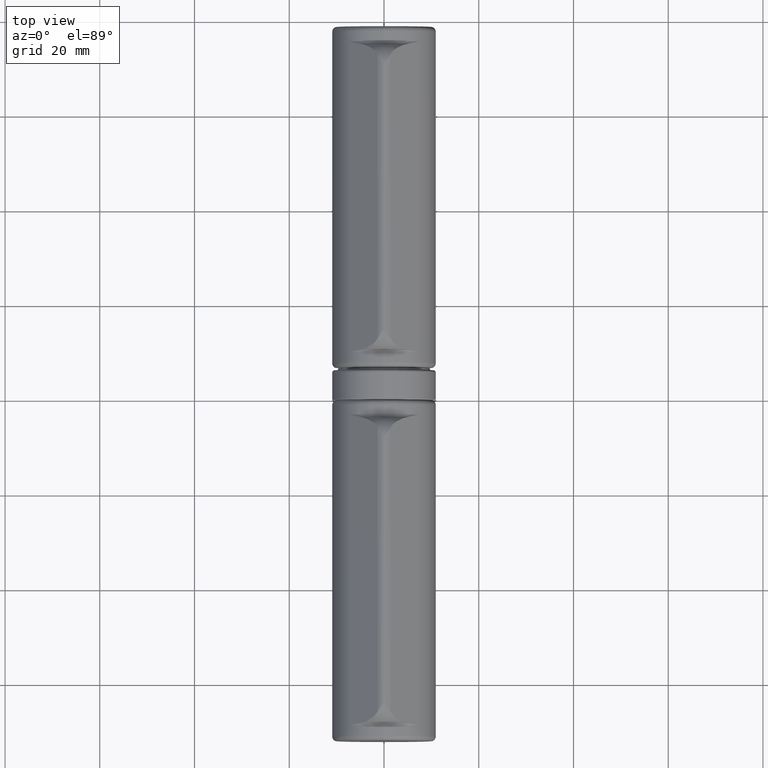
[diagram: clean part render]
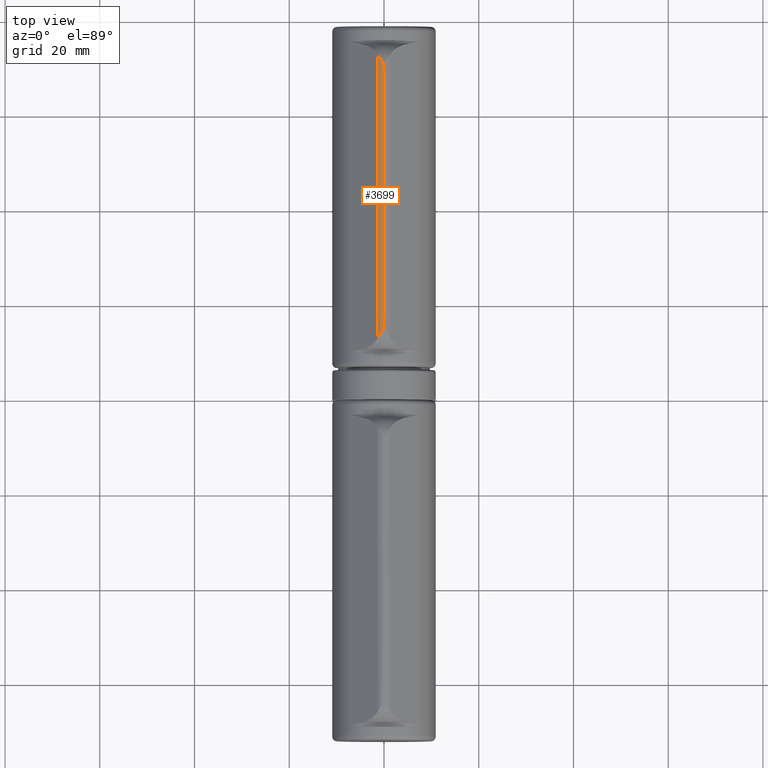
[diagram: same view with one face highlighted and labeled with its STEP entity id]
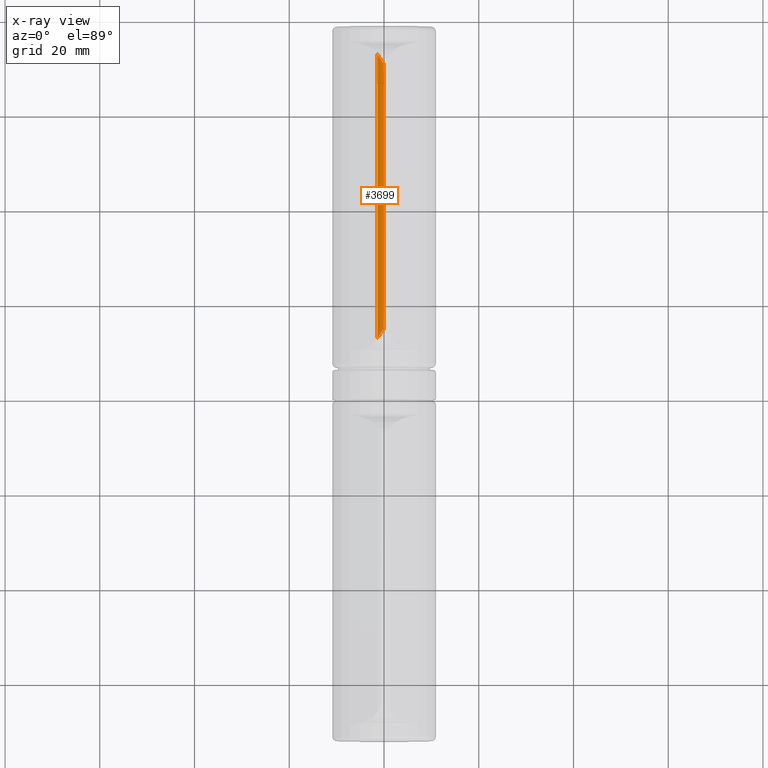
[diagram: x-ray of the same camera — body ghosted, the highlighted face saturated]
A machine part, top view. The second image highlights one B-rep face of the part: STEP entity #3699.
The next image is the same camera in x-ray: the body ghosted, the highlighted face saturated — about 0% of this face is hidden behind the body in this view.
In plain terms, the highlighted cylindrical surface (edge-blend (fillet) strip) has radius 2 mm, axis along (-0, -1, -0).
Its self-contained STEP definition (entity closure, byte-faithful):
#61 = EDGE_CURVE ( 'NONE', #2696, #1764, #1811, .T. ) ;
#73 = CARTESIAN_POINT ( 'NONE',  ( -0.1797755674963968375, -28.13744201227839525, 13.99422038142042268 ) ) ;
#185 = CARTESIAN_POINT ( 'NONE',  ( -0.9495471721019589362, -29.29085620622283415, 13.78933436052441408 ) ) ;
#340 = CARTESIAN_POINT ( 'NONE',  ( -0.04019047951948063330, 27.93071537509020885, 13.99994231150100177 ) ) ;
#382 = EDGE_CURVE ( 'NONE', #8740, #7435, #10509, .T. ) ;
#727 = VERTEX_POINT ( 'NONE', #3966 ) ;
#818 = ORIENTED_EDGE ( 'NONE', *, *, #6056, .T. ) ;
#1020 = CARTESIAN_POINT ( 'NONE',  ( -1.351001462184552304, -29.95793136767814602, 13.49723749695378672 ) ) ;
#1231 = EDGE_CURVE ( 'NONE', #7435, #6901, #1412, .T. ) ;
#1277 = CARTESIAN_POINT ( 'NONE',  ( -0.6152469644701304974, 28.78189699772699939, 13.91463114303778248 ) ) ;
#1313 = EDGE_CURVE ( 'NONE', #9233, #2094, #9024, .T. ) ;
#1412 = LINE ( 'NONE', #2133, #7505 ) ;
#1491 = ORIENTED_EDGE ( 'NONE', *, *, #4905, .T. ) ;
#1582 = ORIENTED_EDGE ( 'NONE', *, *, #1231, .T. ) ;
#1636 = AXIS2_PLACEMENT_3D ( 'NONE', #3669, #3713, #10595 ) ;
#1764 = VERTEX_POINT ( 'NONE', #4370 ) ;
#1811 = LINE ( 'NONE', #7497, #9412 ) ;
#1815 = CARTESIAN_POINT ( 'NONE',  ( -0.04019047951974855787, -26.00000000000000000, 13.99994231150100177 ) ) ;
#1968 = CARTESIAN_POINT ( 'NONE',  ( -0.09156454697678298449, 28.00747831101633167, 13.99894423454602155 ) ) ;
#2094 = VERTEX_POINT ( 'NONE', #9134 ) ;
#2133 = CARTESIAN_POINT ( 'NONE',  ( -0.04019047951974856481, -26.95871215252207875, 13.99994231150100354 ) ) ;
#2696 = VERTEX_POINT ( 'NONE', #8909 ) ;
#2716 = CARTESIAN_POINT ( 'NONE',  ( -0.06272908214057158760, -27.96405779639169609, 13.99965602459221969 ) ) ;
#2931 = CARTESIAN_POINT ( 'NONE',  ( -0.1501165675766360785, 28.09388185887190659, 13.99629779718924283 ) ) ;
#2986 = DIRECTION ( 'NONE',  ( -0.000000000000000000, 1.000000000000000000, -1.445602896647339410E-16 ) ) ;
#3257 = DIRECTION ( 'NONE',  ( 0.000000000000000000, 0.000000000000000000, -1.000000000000000000 ) ) ;
#3289 = LINE ( 'NONE', #7918, #4228 ) ;
#3669 = CARTESIAN_POINT ( 'NONE',  ( -0.02499999999999828748, -25.99999999999999645, 12.00000000000000355 ) ) ;
#3699 = ADVANCED_FACE ( 'NONE', ( #11090 ), #10290, .T. ) ;
#3713 = DIRECTION ( 'NONE',  ( 0.000000000000000000, 1.000000000000000000, -1.445602896647339410E-16 ) ) ;
#3740 = CARTESIAN_POINT ( 'NONE',  ( -1.160990710298337447, 29.62569070998569032, 13.66551710212297444 ) ) ;
#3814 = CARTESIAN_POINT ( 'NONE',  ( -0.1794816681737933517, 28.13700997572489726, 13.99424203055542826 ) ) ;
#3935 = CARTESIAN_POINT ( 'NONE',  ( -1.351001462184552304, -29.95793136767814602, 13.49723749695378672 ) ) ;
#3966 = CARTESIAN_POINT ( 'NONE',  ( -1.351001462184445279, 29.95793136767795772, 13.49723749695388086 ) ) ;
#4208 = EDGE_LOOP ( 'NONE', ( #1582, #6730, #10354, #1491, #10165, #6823, #818, #6396 ) ) ;
#4228 = VECTOR ( 'NONE', #7109, 1000.000000000000000 ) ;
#4286 = EDGE_CURVE ( 'NONE', #1764, #727, #7073, .T. ) ;
#4370 = CARTESIAN_POINT ( 'NONE',  ( -0.04019047951964108134, 27.91742430504415395, 13.99994231150100887 ) ) ;
#4380 = CARTESIAN_POINT ( 'NONE',  ( -1.160508044110430070, -29.62484675073533680, 13.66594456675182379 ) ) ;
#4452 = CARTESIAN_POINT ( 'NONE',  ( -0.09167234762554272998, -28.00763856088741832, 13.99894086666714621 ) ) ;
#4564 = CARTESIAN_POINT ( 'NONE',  ( -0.3258129472107139657, 28.35225974672063387, 13.97813046162228723 ) ) ;
#4612 = AXIS2_PLACEMENT_3D ( 'NONE', #8688, #10324, #7003 ) ;
#4781 = DIRECTION ( 'NONE',  ( -0.000000000000000000, 1.000000000000000000, 1.445602896647339410E-16 ) ) ;
#4905 = EDGE_CURVE ( 'NONE', #9233, #2696, #7194, .T. ) ;
#5084 = CARTESIAN_POINT ( 'NONE',  ( -0.04019047951928750306, -27.91742430504415395, 13.99994231150100710 ) ) ;
#5268 = CARTESIAN_POINT ( 'NONE',  ( -0.04019047938135923009, -27.93061954580347361, 13.99994231150222923 ) ) ;
#5567 = CARTESIAN_POINT ( 'NONE',  ( -0.5001282226487362426, 28.61005570449220770, 13.94633177584731065 ) ) ;
#5608 = CARTESIAN_POINT ( 'NONE',  ( -0.04890691204991203661, 27.94183058076622572, 13.99986897204585290 ) ) ;
#6056 = EDGE_CURVE ( 'NONE', #727, #8740, #3289, .T. ) ;
#6145 = CARTESIAN_POINT ( 'NONE',  ( -0.1063434402168223075, -28.02929075759461242, 13.99839909054451148 ) ) ;
#6255 = CARTESIAN_POINT ( 'NONE',  ( -0.6156692077754859493, -28.78253752961890299, 13.91448063943845170 ) ) ;
#6396 = ORIENTED_EDGE ( 'NONE', *, *, #382, .T. ) ;
#6730 = ORIENTED_EDGE ( 'NONE', *, *, #9845, .T. ) ;
#6823 = ORIENTED_EDGE ( 'NONE', *, *, #4286, .T. ) ;
#6901 = VERTEX_POINT ( 'NONE', #1815 ) ;
#7003 = DIRECTION ( 'NONE',  ( 0.000000000000000000, 0.000000000000000000, -1.000000000000000000 ) ) ;
#7073 = B_SPLINE_CURVE_WITH_KNOTS ( 'NONE', 3,
 ( #7284, #340, #5608, #9040, #8162, #1968, #8051, #2931, #3814, #9781, #4564, #5567, #1277, #8924, #3740, #7323 ),
 .UNSPECIFIED., .F., .F.,
 ( 4, 2, 2, 2, 2, 2, 2, 4 ),
 ( 1.956890824642601406E-07, 3.924361120486389166E-05, 7.829153332726352321E-05, 0.0001563873775720627999, 0.0003125790660616528422, 0.0006249624430408420341, 0.001249729196999212069, 0.002499262704915961031 ),
 .UNSPECIFIED. ) ;
#7109 = DIRECTION ( 'NONE',  ( -0.000000000000000000, -1.000000000000000000, -0.000000000000000000 ) ) ;
#7194 = CIRCLE ( 'NONE', #10920, 2.000000000000001776 ) ;
#7284 = CARTESIAN_POINT ( 'NONE',  ( -0.04019047951964108134, 27.91742430504415395, 13.99994231150100887 ) ) ;
#7323 = CARTESIAN_POINT ( 'NONE',  ( -1.351001462184445279, 29.95793136767795772, 13.49723749695388086 ) ) ;
#7435 = VERTEX_POINT ( 'NONE', #5084 ) ;
#7497 = CARTESIAN_POINT ( 'NONE',  ( -0.04019047951974856481, 26.95871215252207875, 13.99994231150100354 ) ) ;
#7505 = VECTOR ( 'NONE', #2986, 1000.000000000000000 ) ;
#7515 = CARTESIAN_POINT ( 'NONE',  ( -0.02499999999999828748, 25.99999999999999645, 14.00000000000000178 ) ) ;
#7896 = CARTESIAN_POINT ( 'NONE',  ( -0.06995353398342431250, -27.97496614064038312, 13.99950784628993539 ) ) ;
#7918 = CARTESIAN_POINT ( 'NONE',  ( -1.351001462184552748, 36.00000000000000000, 13.49723749695378672 ) ) ;
#8051 = CARTESIAN_POINT ( 'NONE',  ( -0.1062027294713963482, 28.02908258809055653, 13.99840458350219841 ) ) ;
#8162 = CARTESIAN_POINT ( 'NONE',  ( -0.06989227748938953155, 27.97487302322761238, 13.99950916635973108 ) ) ;
#8290 = DIRECTION ( 'NONE',  ( -0.000000000000000000, -1.000000000000000000, -0.000000000000000000 ) ) ;
#8688 = CARTESIAN_POINT ( 'NONE',  ( -0.02499999999999828748, 36.00000000000000000, 12.00000000000000355 ) ) ;
#8740 = VERTEX_POINT ( 'NONE', #3935 ) ;
#8806 = CARTESIAN_POINT ( 'NONE',  ( -0.1503508223230415886, -28.09422644235241151, 13.99628402106629821 ) ) ;
#8844 = CARTESIAN_POINT ( 'NONE',  ( -0.3265468217369631998, -28.35334104574916836, 13.97802397674101016 ) ) ;
#8909 = CARTESIAN_POINT ( 'NONE',  ( -0.04019047951974875216, 26.00000000000000000, 13.99994231150100177 ) ) ;
#8924 = CARTESIAN_POINT ( 'NONE',  ( -0.9500490946594501995, 29.29161573059285217, 13.78916174346961832 ) ) ;
#9024 = LINE ( 'NONE', #10894, #9953 ) ;
#9040 = CARTESIAN_POINT ( 'NONE',  ( -0.06268146067863150650, 27.96398372410871858, 13.99965685889269729 ) ) ;
#9134 = CARTESIAN_POINT ( 'NONE',  ( -0.02499999999999828748, -25.99999999999999645, 14.00000000000000178 ) ) ;
#9233 = VERTEX_POINT ( 'NONE', #7515 ) ;
#9258 = CIRCLE ( 'NONE', #1636, 2.000000000000001776 ) ;
#9353 = DIRECTION ( 'NONE',  ( 0.000000000000000000, -1.000000000000000000, -1.445602896647339410E-16 ) ) ;
#9412 = VECTOR ( 'NONE', #4781, 1000.000000000000000 ) ;
#9670 = CARTESIAN_POINT ( 'NONE',  ( -0.5013659999273464285, -28.61189442064413413, 13.94605056130643916 ) ) ;
#9710 = CARTESIAN_POINT ( 'NONE',  ( -0.2679075107721966553, -28.26702913599187283, 13.98607088621632499 ) ) ;
#9781 = CARTESIAN_POINT ( 'NONE',  ( -0.2673847846786495674, 28.26626032181045645, 13.98613017325114427 ) ) ;
#9845 = EDGE_CURVE ( 'NONE', #6901, #2094, #9258, .T. ) ;
#9953 = VECTOR ( 'NONE', #8290, 1000.000000000000000 ) ;
#10165 = ORIENTED_EDGE ( 'NONE', *, *, #61, .T. ) ;
#10290 = CYLINDRICAL_SURFACE ( 'NONE', #4612, 2.000000000000001776 ) ;
#10324 = DIRECTION ( 'NONE',  ( -0.000000000000000000, -1.000000000000000000, -0.000000000000000000 ) ) ;
#10354 = ORIENTED_EDGE ( 'NONE', *, *, #1313, .F. ) ;
#10401 = CARTESIAN_POINT ( 'NONE',  ( -0.04891763799565604365, -27.94185033604456692, 13.99986890743364931 ) ) ;
#10485 = CARTESIAN_POINT ( 'NONE',  ( -0.04019047951928750306, -27.91742430504415395, 13.99994231150100710 ) ) ;
#10509 = B_SPLINE_CURVE_WITH_KNOTS ( 'NONE', 3,
 ( #1020, #4380, #185, #6255, #9670, #8844, #9710, #73, #8806, #6145, #4452, #7896, #2716, #10401, #5268, #10485 ),
 .UNSPECIFIED., .F., .F.,
 ( 4, 2, 2, 2, 2, 2, 2, 4 ),
 ( 4.340072874870317275E-07, 0.001240519005739979278, 0.001860561504966229797, 0.002170582754579355057, 0.002325593379385913241, 0.002403098691789188213, 0.002441851347990825483, 0.002480604004192462752 ),
 .UNSPECIFIED. ) ;
#10595 = DIRECTION ( 'NONE',  ( 0.000000000000000000, 0.000000000000000000, 1.000000000000000000 ) ) ;
#10894 = CARTESIAN_POINT ( 'NONE',  ( -0.02499999999999828748, 36.00000000000000000, 14.00000000000000178 ) ) ;
#10920 = AXIS2_PLACEMENT_3D ( 'NONE', #11048, #9353, #3257 ) ;
#11048 = CARTESIAN_POINT ( 'NONE',  ( -0.02499999999999828748, 25.99999999999999645, 12.00000000000000355 ) ) ;
#11090 = FACE_OUTER_BOUND ( 'NONE', #4208, .T. ) ;